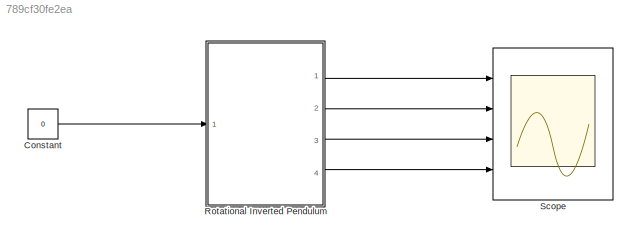
MODEL slx_789cf30fe2ea
KIND model
CONFIG AbsTol = auto
CONFIG EnableMultiTasking = off
CONFIG FixedStep = 0.005
CONFIG MaxStep = auto
CONFIG MinStep = auto
CONFIG RelTol = 1e-3
CONFIG SampleTimeConstraint = Unconstrained
CONFIG Solver = FixedStepAuto
CONFIG SolverName = FixedStepAuto
CONFIG StartTime = 0.0
CONFIG StopTime = 50
BLOCK [Constant] Constant
  Value = 0
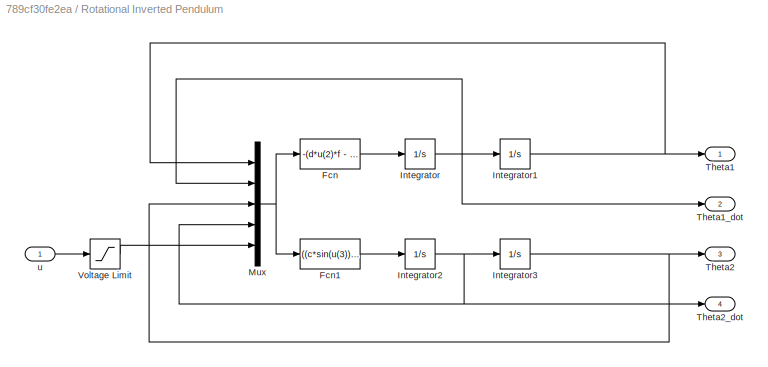
BLOCK [SubSystem] Rotational Inverted Pendulum
  Ports = [1, 4]
  RequestExecContextInheritance = off
BLOCK [Fcn] Rotational Inverted Pendulum/Fcn
  Expr = -(d*u(2)*f - e*f*u(5) + b*c2*u(4)*cos(u(3)) + b*u(4)^2*f*sin(u(3)) - b*h*cos(u(3))*sin(u(3)) - b*c*u(2)^2*cos(u(3))^2*sin(u(3)) + 2*c*u(2)*u(4)*f*cos(u(3))*sin(u(3)))/(a*f - b^2*cos(u(3))^2 + c*f*sin(u(3))^2)
BLOCK [Fcn] Rotational Inverted Pendulum/Fcn1
  Expr = ((c*sin(u(3))^2 + a)*((c*sin(2*u(3))*u(2)^2)/2 - c2*u(4) + h*sin(u(3))))/(a*f - b^2*cos(u(3))^2 + c*f*sin(u(3))^2) - (b*cos(u(3))*(b*sin(u(3))*u(4)^2 + c*u(2)*sin(2*u(3))*u(4) + d*u(2) - e*u(5)))/(a*f - b^2*cos(u(3))^2 + c*f*sin(u(3))^2)
BLOCK [Integrator] Rotational Inverted Pendulum/Integrator
  Ports = [1, 1]
BLOCK [Integrator] Rotational Inverted Pendulum/Integrator1
  InitialCondition = phi111
  Ports = [1, 1]
BLOCK [Integrator] Rotational Inverted Pendulum/Integrator2
  Ports = [1, 1]
BLOCK [Integrator] Rotational Inverted Pendulum/Integrator3
  InitialCondition = phi222
  Ports = [1, 1]
BLOCK [Mux] Rotational Inverted Pendulum/Mux
  DisplayOption = bar
  Inputs = 5
  Ports = [5, 1]
BLOCK [Outport] Rotational Inverted Pendulum/Theta1
  IconDisplay = Port number
BLOCK [Outport] Rotational Inverted Pendulum/Theta1_dot
  IconDisplay = Port number
  Port = 2
BLOCK [Outport] Rotational Inverted Pendulum/Theta2
  IconDisplay = Port number
  Port = 3
BLOCK [Outport] Rotational Inverted Pendulum/Theta2_dot
  IconDisplay = Port number
  Port = 4
BLOCK [Saturate] Rotational Inverted Pendulum/Voltage Limit 
  InputPortMap = u0
  LowerLimit = -25
  Ports = [1, 1]
  UpperLimit = 25
BLOCK [Inport] Rotational Inverted Pendulum/u
  IconDisplay = Port number
BLOCK [Scope] Scope
  Floating = off
  NumInputPorts = 4
  Ports = [4]
  ScopeSpecificationString = Simulink.scopes.TimeScopeBlockCfg('CurrentConfiguration', extmgr.ConfigurationSet(extmgr.Configuration('Core','General UI',true,'FigureColor',[1 1 1]),extmgr.Configuration('Core','Source UI',true),extmgr.Configuration('Sources','WiredSimulink',true),extmgr.Configuration('Visuals','Time Domain',true,'SerializedDisplays',{struct('MinYLimReal','3.01445','MaxYLimReal','3.16333','YLabelReal','','MinYLi...<+4013ch>
LINE Constant:1 -> Rotational Inverted Pendulum:1
LINE Rotational Inverted Pendulum/Fcn1:1 -> Rotational Inverted Pendulum/Integrator2:1
LINE Rotational Inverted Pendulum/Fcn:1 -> Rotational Inverted Pendulum/Integrator:1
NET Rotational Inverted Pendulum/Integrator1:1 -> Rotational Inverted Pendulum/Mux:1, Rotational Inverted Pendulum/Theta1:1
NET Rotational Inverted Pendulum/Integrator2:1 -> Rotational Inverted Pendulum/Integrator3:1, Rotational Inverted Pendulum/Mux:4, Rotational Inverted Pendulum/Theta2_dot:1
NET Rotational Inverted Pendulum/Integrator3:1 -> Rotational Inverted Pendulum/Mux:3, Rotational Inverted Pendulum/Theta2:1
NET Rotational Inverted Pendulum/Integrator:1 -> Rotational Inverted Pendulum/Integrator1:1, Rotational Inverted Pendulum/Mux:2, Rotational Inverted Pendulum/Theta1_dot:1
NET Rotational Inverted Pendulum/Mux:1 -> Rotational Inverted Pendulum/Fcn1:1, Rotational Inverted Pendulum/Fcn:1
LINE Rotational Inverted Pendulum/Voltage Limit :1 -> Rotational Inverted Pendulum/Mux:5
LINE Rotational Inverted Pendulum/u:1 -> Rotational Inverted Pendulum/Voltage Limit :1
LINE Rotational Inverted Pendulum:1 -> Scope:1
LINE Rotational Inverted Pendulum:2 -> Scope:2
LINE Rotational Inverted Pendulum:3 -> Scope:3
LINE Rotational Inverted Pendulum:4 -> Scope:4
note: NET lines group one-source signal fan-out (src -> all destinations, sorted); 1:1 wires keep LINE
